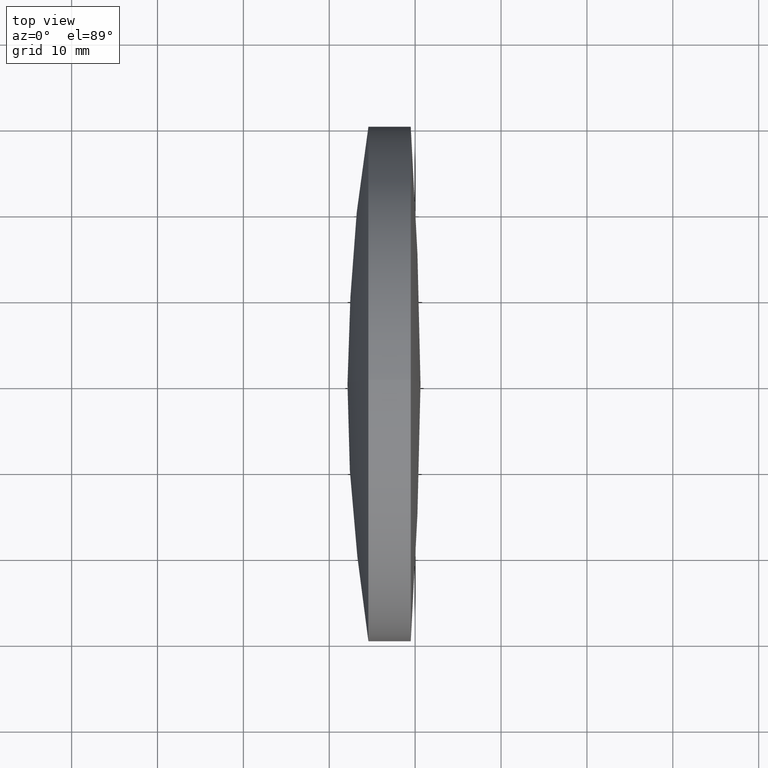
[diagram: clean part render]
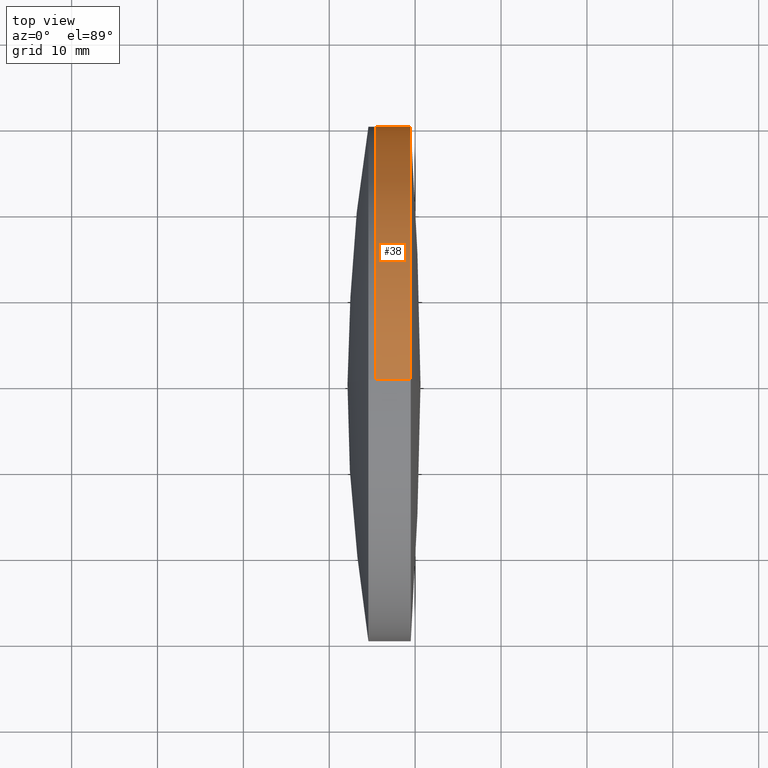
[diagram: same view with one face highlighted and labeled with its STEP entity id]
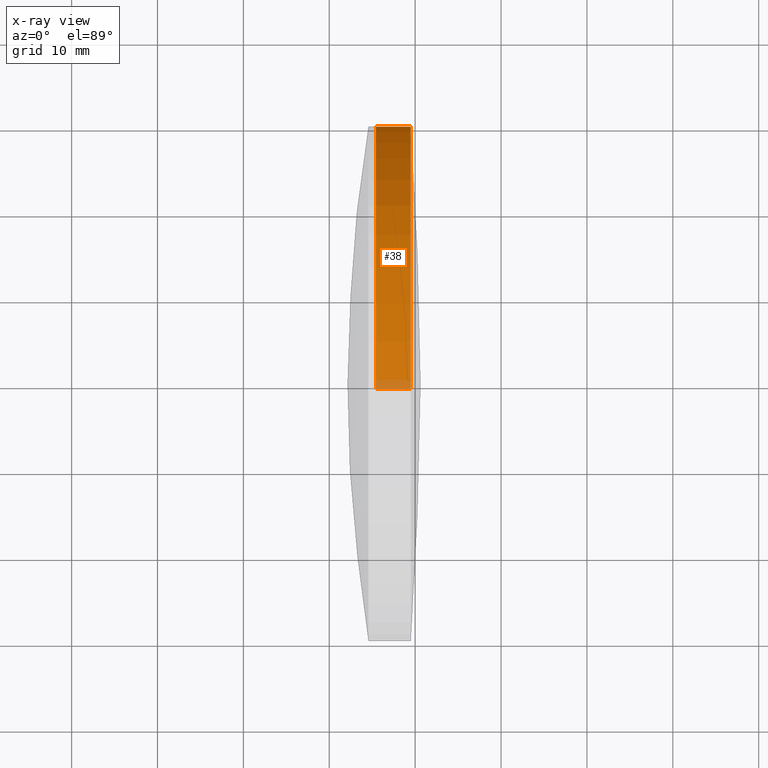
[diagram: x-ray of the same camera — body ghosted, the highlighted face saturated]
A machine part, top view. The second image highlights one B-rep face of the part: STEP entity #38.
The next image is the same camera in x-ray: the body ghosted, the highlighted face saturated — about 3% of this face is hidden behind the body in this view.
In plain terms, the highlighted cylindrical surface (partial cylindrical patch) has radius 30 mm, axis along (-1, -0, -0).
Its self-contained STEP definition (entity closure, byte-faithful):
#4 = ORIENTED_EDGE ( 'NONE', *, *, #171, .T. ) ;
#6 = DIRECTION ( 'NONE',  ( 0.0000000000000000000, 0.0000000000000000000, 1.000000000000000000 ) ) ;
#22 = CARTESIAN_POINT ( 'NONE',  ( -0.5519199926577972300, 3.673940397442057600E-015, -29.99999999999998600 ) ) ;
#31 = CIRCLE ( 'NONE', #235, 29.99999999999995000 ) ;
#38 = ADVANCED_FACE ( 'NONE', ( #106 ), #73, .T. ) ;
#42 = CARTESIAN_POINT ( 'NONE',  ( 339.4863533443066800, 0.0000000000000000000, 0.0000000000000000000 ) ) ;
#57 = EDGE_CURVE ( 'NONE', #113, #63, #80, .T. ) ;
#63 = VERTEX_POINT ( 'NONE', #140 ) ;
#66 = DIRECTION ( 'NONE',  ( -1.000000000000000000, -0.0000000000000000000, -0.0000000000000000000 ) ) ;
#72 = CARTESIAN_POINT ( 'NONE',  ( -0.5519199926577972300, 0.0000000000000000000, 0.0000000000000000000 ) ) ;
#73 = CYLINDRICAL_SURFACE ( 'NONE', #325, 29.99999999999998600 ) ;
#75 = CARTESIAN_POINT ( 'NONE',  ( 335.4079976636520000, 0.0000000000000000000, 30.00000000000001100 ) ) ;
#80 = CIRCLE ( 'NONE', #202, 30.00000000000002500 ) ;
#88 = ORIENTED_EDGE ( 'NONE', *, *, #57, .F. ) ;
#106 = FACE_OUTER_BOUND ( 'NONE', #169, .T. ) ;
#109 = DIRECTION ( 'NONE',  ( 0.0000000000000000000, 0.0000000000000000000, 1.000000000000000000 ) ) ;
#113 = VERTEX_POINT ( 'NONE', #75 ) ;
#132 = EDGE_CURVE ( 'NONE', #227, #63, #306, .T. ) ;
#140 = CARTESIAN_POINT ( 'NONE',  ( 335.4079976636520000, 3.673940397442060800E-015, -30.00000000000001100 ) ) ;
#169 = EDGE_LOOP ( 'NONE', ( #4, #250, #88, #194 ) ) ;
#171 = EDGE_CURVE ( 'NONE', #231, #227, #31, .T. ) ;
#173 = DIRECTION ( 'NONE',  ( -1.000000000000000000, -0.0000000000000000000, -0.0000000000000000000 ) ) ;
#177 = CARTESIAN_POINT ( 'NONE',  ( 339.4863533443066800, 0.0000000000000000000, 29.99999999999995000 ) ) ;
#194 = ORIENTED_EDGE ( 'NONE', *, *, #197, .F. ) ;
#197 = EDGE_CURVE ( 'NONE', #231, #113, #331, .T. ) ;
#202 = AXIS2_PLACEMENT_3D ( 'NONE', #318, #260, #6 ) ;
#227 = VERTEX_POINT ( 'NONE', #262 ) ;
#231 = VERTEX_POINT ( 'NONE', #177 ) ;
#233 = DIRECTION ( 'NONE',  ( 0.0000000000000000000, 0.0000000000000000000, 1.000000000000000000 ) ) ;
#235 = AXIS2_PLACEMENT_3D ( 'NONE', #42, #66, #233 ) ;
#239 = VECTOR ( 'NONE', #272, 1000.000000000000000 ) ;
#250 = ORIENTED_EDGE ( 'NONE', *, *, #132, .T. ) ;
#260 = DIRECTION ( 'NONE',  ( -1.000000000000000000, -0.0000000000000000000, -0.0000000000000000000 ) ) ;
#262 = CARTESIAN_POINT ( 'NONE',  ( 339.4863533443066800, 3.673940397442055200E-015, -29.99999999999995000 ) ) ;
#272 = DIRECTION ( 'NONE',  ( -1.000000000000000000, -0.0000000000000000000, -0.0000000000000000000 ) ) ;
#306 = LINE ( 'NONE', #22, #239 ) ;
#316 = CARTESIAN_POINT ( 'NONE',  ( -0.5519199926577972300, 0.0000000000000000000, 29.99999999999998600 ) ) ;
#318 = CARTESIAN_POINT ( 'NONE',  ( 335.4079976636520000, 0.0000000000000000000, 0.0000000000000000000 ) ) ;
#319 = VECTOR ( 'NONE', #344, 1000.000000000000000 ) ;
#325 = AXIS2_PLACEMENT_3D ( 'NONE', #72, #173, #109 ) ;
#331 = LINE ( 'NONE', #316, #319 ) ;
#344 = DIRECTION ( 'NONE',  ( -1.000000000000000000, -0.0000000000000000000, -0.0000000000000000000 ) ) ;